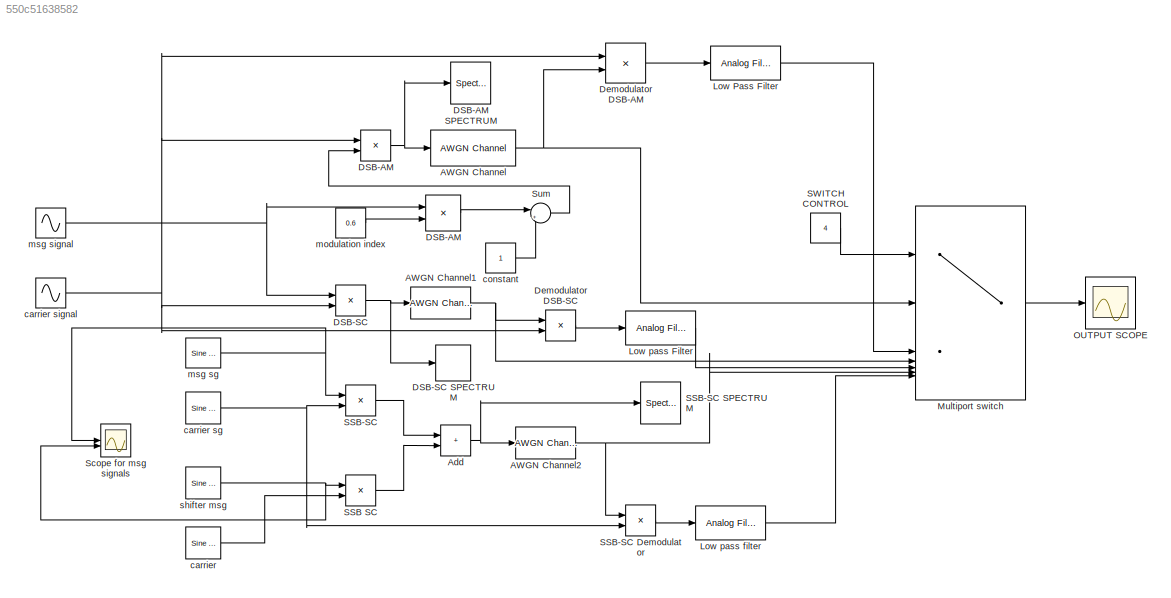
MODEL slx_550c51638582
KIND model
CONFIG AbsTol = auto
CONFIG EnableMultiTasking = off
CONFIG FixedStep = auto
CONFIG MaxStep = auto
CONFIG MinStep = auto
CONFIG RelTol = 1e-3
CONFIG SampleTimeConstraint = Unconstrained
CONFIG SolverName = VariableStepAuto
CONFIG StartTime = 0.0
CONFIG StopTime = 0.2
BLOCK [Product]  DSB-AM
BLOCK [Reference] AWGN Channel  REF=commchan3/AWGN
Channel
  SourceBlock = commchan3/AWGN\nChannel
  SourceType = AWGN Channel
BLOCK [Reference] AWGN Channel1  REF=commchan3/AWGN
Channel
  SourceBlock = commchan3/AWGN\nChannel
  SourceType = AWGN Channel
BLOCK [Reference] AWGN Channel2  REF=commchan3/AWGN
Channel
  SourceBlock = commchan3/AWGN\nChannel
  SourceType = AWGN Channel
BLOCK [Sum] Add
  IconShape = rectangular
BLOCK [Product] DSB-AM
BLOCK [SpectrumAnalyzer] DSB-AM SPECTRUM
  GraphicalSettings = {"GraphicalSettings":{"Style":{"BackgroundColor":[0.12941176470588237,0.12941176470588237,0.12941176470588237],"AxesColor":[0.070588235294117646,0.070588235294117646,0.070588235294117646],"LabelsColor":[0.85098039215686272,0.85098039215686272,0.85098039215686272],"PreserveColors":false,"Visible":true,"LineStyle":["-"],"LineWidth":1.5,"BarWidth":0.9,"LineColor":[1,0.90980392156862744,0.392156862745...<+101ch>  <repeated x3 — deduplicated; at blocks: DSB-AM SPECTRUM, DSB-SC SPECTRUM, SSB-SC SPECTRUM>
  ScopeFrameLocation = window
  Span = 20000
  StartFrequency = -10000
  StopFrequency = 10000
  Visible = on
  WasSavedAsWebScope = on
  WindowInvariantSamplesPerUpdate = on
  WindowPosition = [1.000000,379.000000,400.000000,334.000000,]
  YLimits = [-37.1509 36.9052]
BLOCK [Product] DSB-SC
BLOCK [SpectrumAnalyzer] DSB-SC SPECTRUM
  ScopeFrameLocation = window
  Span = 20000
  StartFrequency = -10000
  StopFrequency = 10000
  Visible = on
  WasSavedAsWebScope = on
  WindowInvariantSamplesPerUpdate = on
  WindowPosition = [760.000000,377.000000,401.000000,327.000000,]
  YLimits = [-41.6944 31.2538]
BLOCK [Product] Demodulator DSB-AM
BLOCK [Product] Demodulator DSB-SC
BLOCK [Reference] Low Pass Filter  REF=dspfdesign/Analog
Filter Design
  SourceBlock = dspfdesign/Analog\nFilter Design
  SourceType = Analog Filter Design
BLOCK [Reference] Low pass Filter  REF=dspfdesign/Analog
Filter Design
  SourceBlock = dspfdesign/Analog\nFilter Design
  SourceType = Analog Filter Design
BLOCK [Reference] Low pass filter  REF=dspfdesign/Analog
Filter Design
  SourceBlock = dspfdesign/Analog\nFilter Design
  SourceType = Analog Filter Design
BLOCK [MultiPortSwitch] Multiport switch
  InputSameDT = off
  Inputs = 6
  SaturateOnIntegerOverflow = off
BLOCK [Scope] OUTPUT SCOPE
  ActiveDisplayYMaximum = 25.286708532080453
  ActiveDisplayYMinimum = -25.410724888662145
  Floating = off
  GraphicalSettings = {"Style":{"BackgroundColor":[0.12941176470588237,0.12941176470588237,0.12941176470588237],"AxesColor":[0.07058823529411765,0.07058823529411765,0.07058823529411765],"LabelsColor":[0.8509803921568627,0.8509803921568627,0.8509803921568627],"PreserveColors":false,"Visible":[true],"LineStyle":["-"],"LineWidth":[1.5],"BarWidth":[0.9],"LineColor":["auto"],"LineFaceAlpha":[1],"LineEdgeAlpha":[1],"Marker":...<+2031ch>
  MultipleDisplayCache = [{"MaxYLimMag":8.5664619361068262,"MaxYLimReal":25.286708532080453,"MinYLimMag":1.4335380638931741,"MinYLimReal":-25.410724888662145,"PlotAsMagnitudePhase":false,"ShowGrid":true,"ShowLegend":false,"Title":"%<SignalLabel>","YLabel":""}]
  NumInputPorts = 1
  ScopeFrameLocation = window
  Visible = on
  WasSavedAsWebScope = on
  WindowPosition = [150.000000,304.000000,560.000000,420.000000,]
BLOCK [Product] SSB SC
BLOCK [Product] SSB-SC
BLOCK [Product] SSB-SC Demodulator
BLOCK [SpectrumAnalyzer] SSB-SC SPECTRUM
  ScopeFrameLocation = window
  Span = 20000
  StartFrequency = -10000
  StopFrequency = 10000
  Visible = on
  WasSavedAsWebScope = on
  WindowInvariantSamplesPerUpdate = on
  WindowPosition = [-1.000000,28.000000,408.000000,321.000000,]
  YLimits = [-35.031 56.2696]
BLOCK [Constant] SWITCH CONTROL
  NameLocation = left
  Value = 4
BLOCK [Scope] Scope for msg signals
  ActiveDisplayYMaximum = 5.5077876292345787
  ActiveDisplayYMinimum = -5.3272360362890723
  DataLoggingVariableName = ScopeData4
  Floating = off
  GraphicalSettings = {"AxesScalingProperties":{"AlignXAxis":"Center","AlignYAxis":"Center","AutoScaleXAxisLimits":false,"AxesScaling":"Manual","AxesScalingNumUpdates":10,"ExpandOnly":true,"ScaleAxesLimitsAtStop":false,"XAxisDataRange":100,"YAxisDataRange":80},"DisplayProperties":{"ColorOrder":["auto","auto","auto","auto","auto","auto","auto","auto","auto","auto","auto","auto","auto","auto","auto","auto","auto","auto",...<+2082ch>
  MultipleDisplayCache = [{"MaxYLimMag":87.5,"MaxYLimReal":5.5077876292345787,"MinYLimMag":0,"MinYLimReal":-5.3272360362890723,"PlotAsMagnitudePhase":false,"ShowGrid":true,"ShowLegend":false,"Title":"%<SignalLabel>","YLabel":""}]
  NumInputPorts = 2
  ScopeFrameLocation = window
  WasSavedAsWebScope = on
  WindowPosition = [1.000000,49.000000,1920.000000,1009.000000,]
BLOCK [Sum] Sum
  Inputs = |++
BLOCK [Reference] carrier  REF=dspsrcs4/Sine Wave
  SourceBlock = dspsrcs4/Sine Wave
  SourceType = Sine Wave
BLOCK [Reference] carrier sg  REF=dspsrcs4/Sine Wave
  SourceBlock = dspsrcs4/Sine Wave
  SourceType = Sine Wave
BLOCK [Sin] carrier signal
  Amplitude = 2
  Frequency = 2*pi*1000
  Phase = pi/2
  SampleTime = 1/20000
BLOCK [Constant] constant
BLOCK [Constant] modulation index
  Value = 0.6
BLOCK [Reference] msg sg  REF=dspsrcs4/Sine Wave
  SourceBlock = dspsrcs4/Sine Wave
  SourceType = Sine Wave
BLOCK [Sin] msg signal
  Frequency = 2*pi*100
  SampleTime = 1/20000
  Samples = 100
BLOCK [Reference] shifter msg  REF=dspsrcs4/Sine Wave
  SourceBlock = dspsrcs4/Sine Wave
  SourceType = Sine Wave
NET  DSB-AM:1 -> AWGN Channel:1, DSB-AM SPECTRUM:1
NET AWGN Channel1:1 -> Demodulator DSB-SC:1, Multiport switch:4
NET AWGN Channel2:1 -> Multiport switch:6, SSB-SC Demodulator:1
NET AWGN Channel:1 -> Demodulator DSB-AM:2, Multiport switch:2
NET Add:1 -> AWGN Channel2:1, SSB-SC SPECTRUM:1
LINE DSB-AM:1 -> Sum:1
NET DSB-SC:1 -> AWGN Channel1:1, DSB-SC SPECTRUM:1
LINE Demodulator DSB-AM:1 -> Low Pass Filter:1
LINE Demodulator DSB-SC:1 -> Low pass Filter:1
LINE Low Pass Filter:1 -> Multiport switch:3
LINE Low pass Filter:1 -> Multiport switch:5
LINE Low pass filter:1 -> Multiport switch:7
LINE Multiport switch:1 -> OUTPUT SCOPE:1
LINE SSB SC:1 -> Add:2
LINE SSB-SC Demodulator:1 -> Low pass filter:1
LINE SSB-SC:1 -> Add:1
LINE SWITCH CONTROL:1 -> Multiport switch:1
LINE Sum:1 ->  DSB-AM:2
NET carrier sg:1 -> SSB-SC Demodulator:2, SSB-SC:2
NET carrier signal:1 ->  DSB-AM:1, DSB-SC:2, Demodulator DSB-AM:1, Demodulator DSB-SC:2
LINE carrier:1 -> SSB SC:2
LINE constant:1 -> Sum:2
LINE modulation index:1 -> DSB-AM:2
NET msg sg:1 -> SSB-SC:1, Scope for msg signals:1
NET msg signal:1 -> DSB-AM:1, DSB-SC:1
NET shifter msg:1 -> SSB SC:1, Scope for msg signals:2
note: NET lines group one-source signal fan-out (src -> all destinations, sorted); 1:1 wires keep LINE
